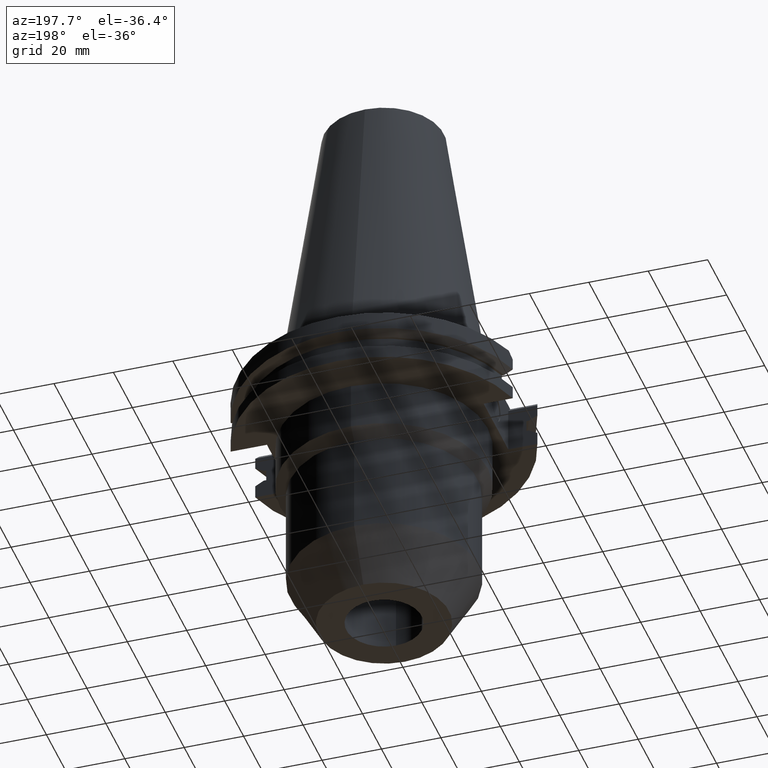
[diagram: clean part render]
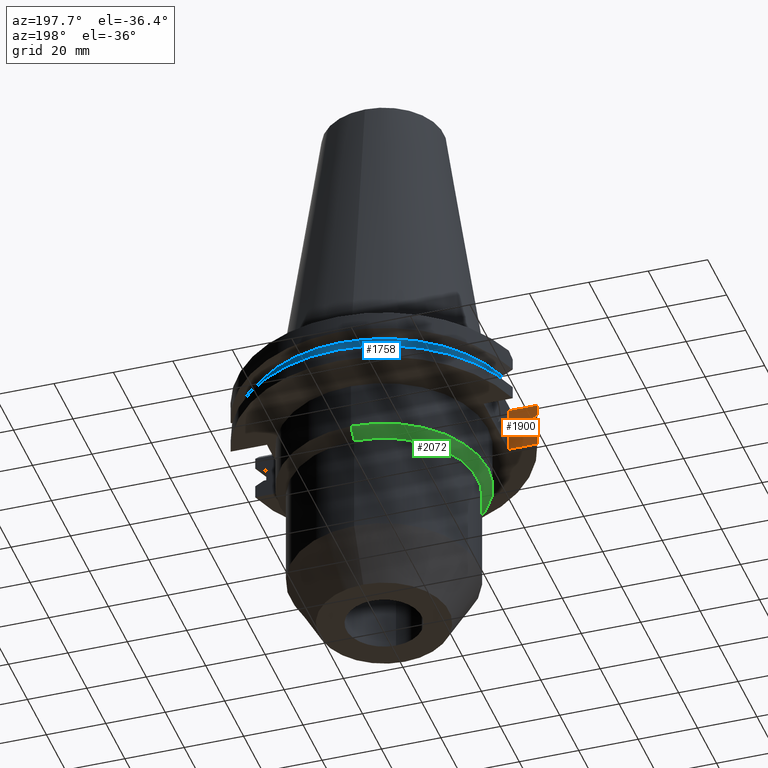
[diagram: same view with three faces highlighted in distinct colors, each labeled with its STEP entity id]
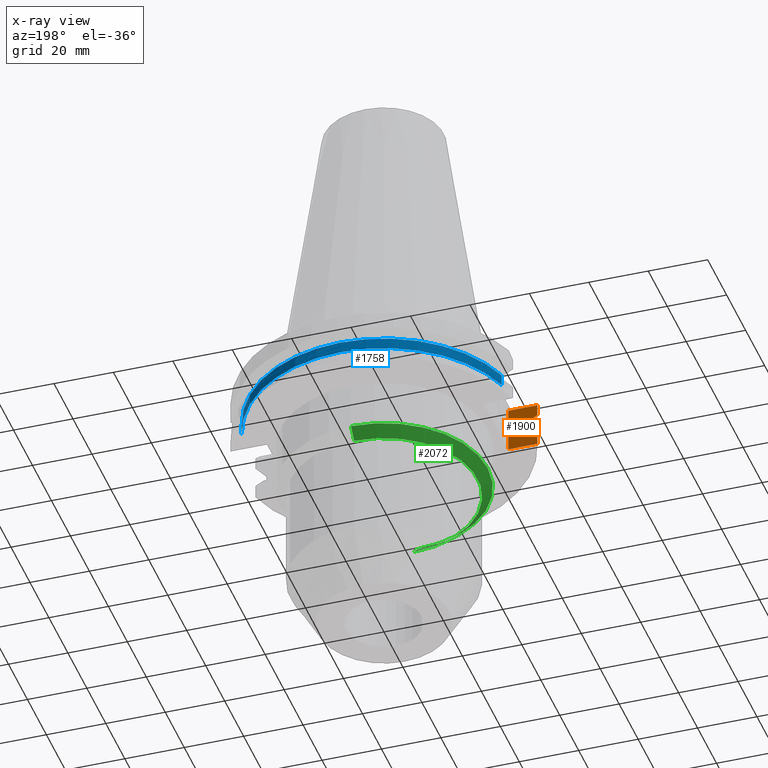
[diagram: x-ray of the same camera — body ghosted, the three highlighted faces saturated]
A machine part, auxiliary view with three faces highlighted in distinct colors.
The next image is the same camera in x-ray (body ghosted, the three faces saturated) — at least one of them is partly hidden behind the body in this view.
Their STEP definitions:

[orange] entity #1900 — the highlighted planar face has unit normal (0, -1, 0).
#228=DIRECTION('',(-1.E0,-1.831349647018E-14,0.E0));
#229=VECTOR('',#228,9.796711462041E0);
#230=CARTESIAN_POINT('',(-3.768E1,-1.2955E1,-1.905E1));
#231=LINE('',#230,#229);
#569=DIRECTION('',(1.E0,1.813217472295E-14,0.E0));
#570=VECTOR('',#569,9.796711462041E0);
#571=CARTESIAN_POINT('',(-4.747671146204E1,-1.2955E1,-3.7E0));
#572=LINE('',#571,#570);
#590=DIRECTION('',(2.604433028388E-13,3.505967538215E-14,1.E0));
#591=VECTOR('',#590,3.901333230925E0);
#592=CARTESIAN_POINT('',(-4.747671146204E1,-1.2955E1,-7.601333230925E0));
#593=LINE('',#592,#591);
#633=DIRECTION('',(-1.341459893288E-13,-4.727433961285E-14,1.E0));
#634=VECTOR('',#633,4.396333230921E0);
#635=CARTESIAN_POINT('',(-4.747671146204E1,-1.2955E1,-1.905E1));
#636=LINE('',#635,#634);
#640=DIRECTION('',(0.E0,0.E0,1.E0));
#641=VECTOR('',#640,1.535E1);
#642=CARTESIAN_POINT('',(-3.768E1,-1.2955E1,-1.905E1));
#643=LINE('',#642,#641);
#647=DIRECTION('',(-1.E0,3.753997133050E-13,4.036089403164E-13));
#648=VECTOR('',#647,8.186200530381E-1);
#649=CARTESIAN_POINT('',(-4.376795631509E1,-1.2955E1,-1.30475E1));
#650=LINE('',#649,#648);
#664=CARTESIAN_POINT('',(-4.458657636813E1,-1.2955E1,-9.207500000001E0));
#665=CARTESIAN_POINT('',(-4.490800201650E1,-1.2955E1,-9.029294823466E0));
#666=CARTESIAN_POINT('',(-4.555063729230E1,-1.2955E1,-8.672683119231E0));
#667=CARTESIAN_POINT('',(-4.651400683739E1,-1.2955E1,-8.137276542126E0));
#668=CARTESIAN_POINT('',(-4.715587471992E1,-1.2955E1,-7.780034925951E0));
#669=CARTESIAN_POINT('',(-4.747671146204E1,-1.2955E1,-7.601333230925E0));
#706=DIRECTION('',(-1.E0,2.777523890348E-13,-1.019872053487E-12));
#707=VECTOR('',#706,8.186200530384E-1);
#708=CARTESIAN_POINT('',(-4.376795631509E1,-1.2955E1,-9.2075E0));
#709=LINE('',#708,#707);
#736=DIRECTION('',(0.E0,0.E0,1.E0));
#737=VECTOR('',#736,3.84E0);
#738=CARTESIAN_POINT('',(-4.376795631509E1,-1.2955E1,-1.30475E1));
#739=LINE('',#738,#737);
#808=CARTESIAN_POINT('',(-4.747671146204E1,-1.2955E1,-1.465366676908E1));
#809=CARTESIAN_POINT('',(-4.715587471991E1,-1.2955E1,-1.447496507405E1));
#810=CARTESIAN_POINT('',(-4.651400683737E1,-1.2955E1,-1.411772345786E1));
#811=CARTESIAN_POINT('',(-4.555063729228E1,-1.2955E1,-1.358231688076E1));
#812=CARTESIAN_POINT('',(-4.490800201650E1,-1.2955E1,-1.322570517653E1));
#813=CARTESIAN_POINT('',(-4.458657636813E1,-1.2955E1,-1.30475E1));
#1264=CARTESIAN_POINT('',(-3.768E1,-1.2955E1,-1.905E1));
#1265=VERTEX_POINT('',#1264);
#1266=CARTESIAN_POINT('',(-4.747671146204E1,-1.2955E1,-1.905E1));
#1267=VERTEX_POINT('',#1266);
#1349=CARTESIAN_POINT('',(-4.747671146204E1,-1.2955E1,-7.601333230926E0));
#1350=VERTEX_POINT('',#1349);
#1351=CARTESIAN_POINT('',(-4.747671146204E1,-1.2955E1,-3.7E0));
#1352=VERTEX_POINT('',#1351);
#1367=CARTESIAN_POINT('',(-4.747671146204E1,-1.2955E1,-1.465366676908E1));
#1368=VERTEX_POINT('',#1367);
#1375=CARTESIAN_POINT('',(-3.768E1,-1.2955E1,-3.7E0));
#1376=VERTEX_POINT('',#1375);
#1377=VERTEX_POINT('',#664);
#1378=CARTESIAN_POINT('',(-4.376795631509E1,-1.2955E1,-9.2075E0));
#1379=VERTEX_POINT('',#1378);
#1380=CARTESIAN_POINT('',(-4.376795631509E1,-1.2955E1,-1.30475E1));
#1381=VERTEX_POINT('',#1380);
#1382=CARTESIAN_POINT('',(-4.458657636813E1,-1.2955E1,-1.30475E1));
#1383=VERTEX_POINT('',#1382);
#1878=CARTESIAN_POINT('',(-3.768E1,-1.2955E1,-3.7E0));
#1879=DIRECTION('',(0.E0,-1.E0,0.E0));
#1880=DIRECTION('',(0.E0,0.E0,-1.E0));
#1881=AXIS2_PLACEMENT_3D('',#1878,#1879,#1880);
#1882=PLANE('',#1881);
#1883=ORIENTED_EDGE('',*,*,#1558,.F.);
#1884=ORIENTED_EDGE('',*,*,#1660,.T.);
#1885=ORIENTED_EDGE('',*,*,#1796,.F.);
#1886=ORIENTED_EDGE('',*,*,#1816,.F.);
#1888=ORIENTED_EDGE('',*,*,#1887,.F.);
#1890=ORIENTED_EDGE('',*,*,#1889,.F.);
#1892=ORIENTED_EDGE('',*,*,#1891,.F.);
#1894=ORIENTED_EDGE('',*,*,#1893,.T.);
#1896=ORIENTED_EDGE('',*,*,#1895,.F.);
#1897=ORIENTED_EDGE('',*,*,#1869,.F.);
#1898=EDGE_LOOP('',(#1883,#1884,#1885,#1886,#1888,#1890,#1892,#1894,#1896,
#1897));
#1899=FACE_OUTER_BOUND('',#1898,.F.);
#670=B_SPLINE_CURVE_WITH_KNOTS('',3,(#664,#665,#666,#667,#668,#669),
.UNSPECIFIED.,.F.,.F.,(4,1,1,4),(0.E0,3.333333333333E-1,6.666666666667E-1,1.E0),
.UNSPECIFIED.);
#814=B_SPLINE_CURVE_WITH_KNOTS('',3,(#808,#809,#810,#811,#812,#813),
.UNSPECIFIED.,.F.,.F.,(4,1,1,4),(0.E0,3.333333333333E-1,6.666666666667E-1,1.E0),
.UNSPECIFIED.);
#1558=EDGE_CURVE('',#1265,#1267,#231,.T.);
#1660=EDGE_CURVE('',#1265,#1376,#643,.T.);
#1796=EDGE_CURVE('',#1352,#1376,#572,.T.);
#1816=EDGE_CURVE('',#1350,#1352,#593,.T.);
#1869=EDGE_CURVE('',#1267,#1368,#636,.T.);
#1887=EDGE_CURVE('',#1377,#1350,#670,.T.);
#1889=EDGE_CURVE('',#1379,#1377,#709,.T.);
#1891=EDGE_CURVE('',#1381,#1379,#739,.T.);
#1893=EDGE_CURVE('',#1381,#1383,#650,.T.);
#1895=EDGE_CURVE('',#1368,#1383,#814,.T.);
#1900=ADVANCED_FACE('',(#1899),#1882,.F.);

[blue] entity #1758 — the highlighted cylindrical surface (partial cylindrical patch) has radius 45.645 mm, axis along (0, 0, 1).
#433=CARTESIAN_POINT('',(0.E0,0.E0,-1.30475E1));
#434=DIRECTION('',(0.E0,0.E0,1.E0));
#435=DIRECTION('',(9.588773428655E-1,2.838207908862E-1,0.E0));
#436=AXIS2_PLACEMENT_3D('',#433,#434,#435);
#441=CARTESIAN_POINT('',(0.E0,0.E0,-1.30475E1));
#442=DIRECTION('',(0.E0,0.E0,1.E0));
#443=DIRECTION('',(0.E0,1.E0,0.E0));
#444=AXIS2_PLACEMENT_3D('',#441,#442,#443);
#472=DIRECTION('',(0.E0,0.E0,1.E0));
#473=VECTOR('',#472,3.84E0);
#474=CARTESIAN_POINT('',(4.376795631509E1,1.2955E1,-1.30475E1));
#475=LINE('',#474,#473);
#479=DIRECTION('',(0.E0,0.E0,-1.E0));
#480=VECTOR('',#479,3.84E0);
#481=CARTESIAN_POINT('',(-4.376795631509E1,1.2955E1,-9.2075E0));
#482=LINE('',#481,#480);
#509=CARTESIAN_POINT('',(0.E0,0.E0,-9.2075E0));
#510=DIRECTION('',(0.E0,0.E0,-1.E0));
#511=DIRECTION('',(-9.588773428655E-1,2.838207908862E-1,0.E0));
#512=AXIS2_PLACEMENT_3D('',#509,#510,#511);
#517=CARTESIAN_POINT('',(0.E0,0.E0,-9.2075E0));
#518=DIRECTION('',(0.E0,0.E0,-1.E0));
#519=DIRECTION('',(0.E0,1.E0,0.E0));
#520=AXIS2_PLACEMENT_3D('',#517,#518,#519);
#1337=CARTESIAN_POINT('',(4.376795631509E1,1.2955E1,-9.2075E0));
#1338=VERTEX_POINT('',#1337);
#1339=CARTESIAN_POINT('',(4.376795631509E1,1.2955E1,-1.30475E1));
#1340=VERTEX_POINT('',#1339);
#1391=CARTESIAN_POINT('',(-4.376795631509E1,1.2955E1,-1.30475E1));
#1392=VERTEX_POINT('',#1391);
#1393=CARTESIAN_POINT('',(-4.376795631509E1,1.2955E1,-9.2075E0));
#1394=VERTEX_POINT('',#1393);
#1403=CARTESIAN_POINT('',(3.016347127729E-14,4.5645E1,-1.30475E1));
#1404=VERTEX_POINT('',#1403);
#1407=CARTESIAN_POINT('',(-3.016347127729E-14,4.5645E1,-9.2075E0));
#1408=VERTEX_POINT('',#1407);
#1743=CARTESIAN_POINT('',(0.E0,0.E0,-9.8425E1));
#1744=DIRECTION('',(0.E0,0.E0,1.E0));
#1745=DIRECTION('',(0.E0,1.E0,0.E0));
#1746=AXIS2_PLACEMENT_3D('',#1743,#1744,#1745);
#1747=CYLINDRICAL_SURFACE('',#1746,4.5645E1);
#1748=ORIENTED_EDGE('',*,*,#1590,.T.);
#1750=ORIENTED_EDGE('',*,*,#1749,.F.);
#1752=ORIENTED_EDGE('',*,*,#1751,.F.);
#1753=ORIENTED_EDGE('',*,*,#1683,.T.);
#1754=ORIENTED_EDGE('',*,*,#1735,.F.);
#1755=ORIENTED_EDGE('',*,*,#1733,.F.);
#1756=EDGE_LOOP('',(#1748,#1750,#1752,#1753,#1754,#1755));
#1757=FACE_OUTER_BOUND('',#1756,.F.);
#437=CIRCLE('',#436,4.5645E1);
#445=CIRCLE('',#444,4.5645E1);
#513=CIRCLE('',#512,4.5645E1);
#521=CIRCLE('',#520,4.5645E1);
#1590=EDGE_CURVE('',#1340,#1338,#475,.T.);
#1683=EDGE_CURVE('',#1394,#1392,#482,.T.);
#1733=EDGE_CURVE('',#1340,#1404,#437,.T.);
#1735=EDGE_CURVE('',#1404,#1392,#445,.T.);
#1749=EDGE_CURVE('',#1408,#1338,#521,.T.);
#1751=EDGE_CURVE('',#1394,#1408,#513,.T.);
#1758=ADVANCED_FACE('',(#1757),#1747,.T.);

[green] entity #2072 — the highlighted conical surface has half-angle 44.88 deg.
#862=DIRECTION('',(0.E0,-7.056242704318E-1,-7.085861902250E-1));
#863=VECTOR('',#862,4.853857985785E0);
#864=CARTESIAN_POINT('',(0.E0,3.4925E1,-3.5E1));
#865=LINE('',#864,#863);
#885=CARTESIAN_POINT('',(0.E0,0.E0,-3.5E1));
#886=DIRECTION('',(0.E0,0.E0,1.E0));
#887=DIRECTION('',(0.E0,1.E0,0.E0));
#888=AXIS2_PLACEMENT_3D('',#885,#886,#887);
#893=DIRECTION('',(0.E0,7.056242704318E-1,-7.085861902250E-1));
#894=VECTOR('',#893,4.853857985785E0);
#895=CARTESIAN_POINT('',(0.E0,-3.4925E1,-3.5E1));
#896=LINE('',#895,#894);
#900=CARTESIAN_POINT('',(0.E0,0.E0,-3.843937673804E1));
#901=DIRECTION('',(0.E0,0.E0,-1.E0));
#902=DIRECTION('',(0.E0,-1.E0,0.E0));
#903=AXIS2_PLACEMENT_3D('',#900,#901,#902);
#1276=CARTESIAN_POINT('',(0.E0,3.4925E1,-3.5E1));
#1277=VERTEX_POINT('',#1276);
#1278=CARTESIAN_POINT('',(0.E0,-3.4925E1,-3.5E1));
#1279=VERTEX_POINT('',#1278);
#1280=CARTESIAN_POINT('',(0.E0,3.15E1,-3.843937673804E1));
#1281=VERTEX_POINT('',#1280);
#1282=CARTESIAN_POINT('',(0.E0,-3.15E1,-3.843937673804E1));
#1283=VERTEX_POINT('',#1282);
#2060=CARTESIAN_POINT('',(0.E0,0.E0,-3.671968836902E1));
#2061=DIRECTION('',(0.E0,0.E0,1.E0));
#2062=DIRECTION('',(0.E0,1.E0,0.E0));
#2063=AXIS2_PLACEMENT_3D('',#2060,#2061,#2062);
#2064=CONICAL_SURFACE('',#2063,3.32125E1,4.488E1);
#2065=ORIENTED_EDGE('',*,*,#2050,.F.);
#2066=ORIENTED_EDGE('',*,*,#2027,.T.);
#2067=ORIENTED_EDGE('',*,*,#2054,.T.);
#2069=ORIENTED_EDGE('',*,*,#2068,.T.);
#2070=EDGE_LOOP('',(#2065,#2066,#2067,#2069));
#2071=FACE_OUTER_BOUND('',#2070,.F.);
#889=CIRCLE('',#888,3.4925E1);
#904=CIRCLE('',#903,3.15E1);
#2027=EDGE_CURVE('',#1277,#1279,#889,.T.);
#2050=EDGE_CURVE('',#1277,#1281,#865,.T.);
#2054=EDGE_CURVE('',#1279,#1283,#896,.T.);
#2068=EDGE_CURVE('',#1283,#1281,#904,.T.);
#2072=ADVANCED_FACE('',(#2071),#2064,.T.);